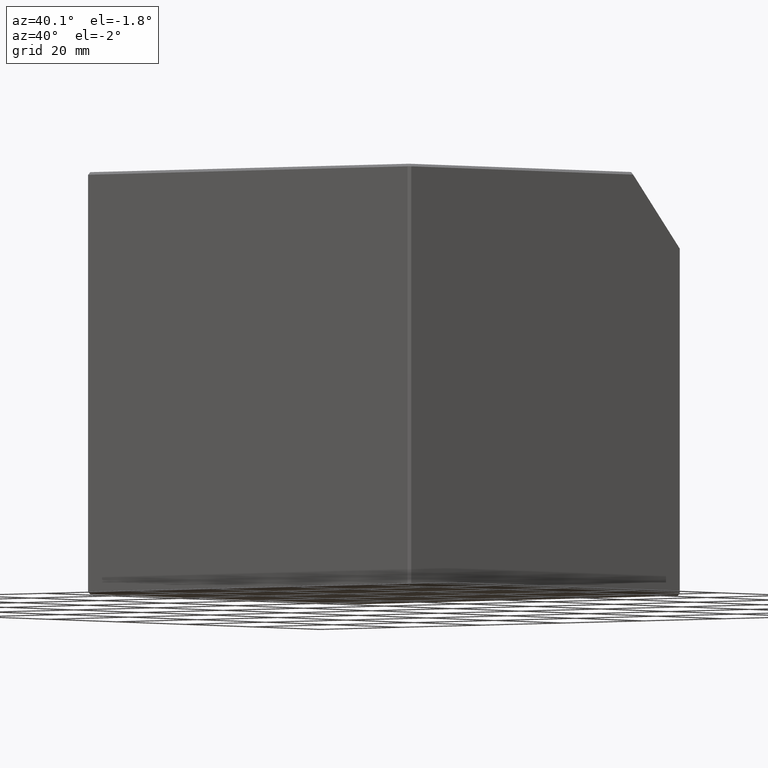
[diagram: clean part render]
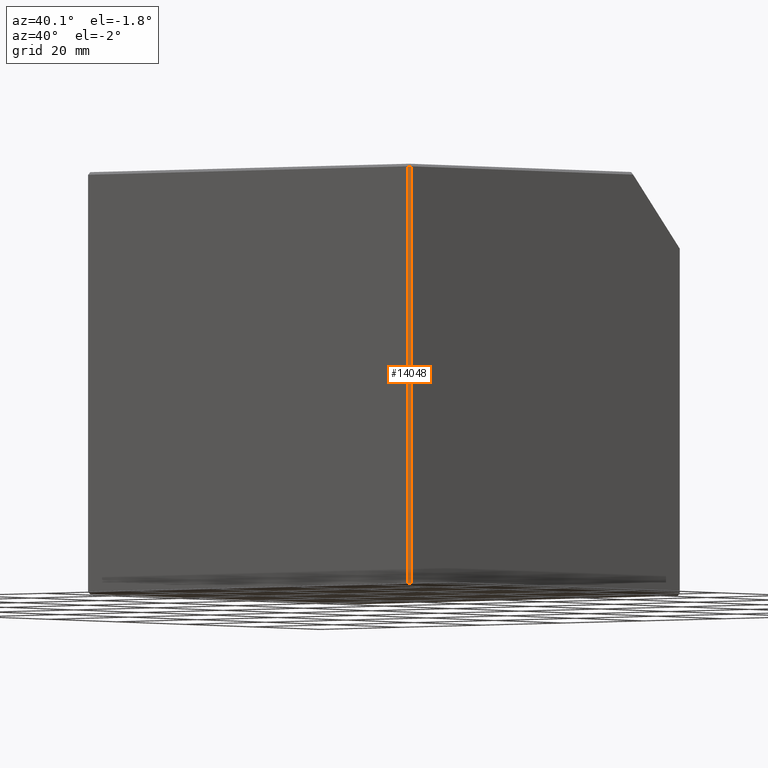
[diagram: same view with one face highlighted and labeled with its STEP entity id]
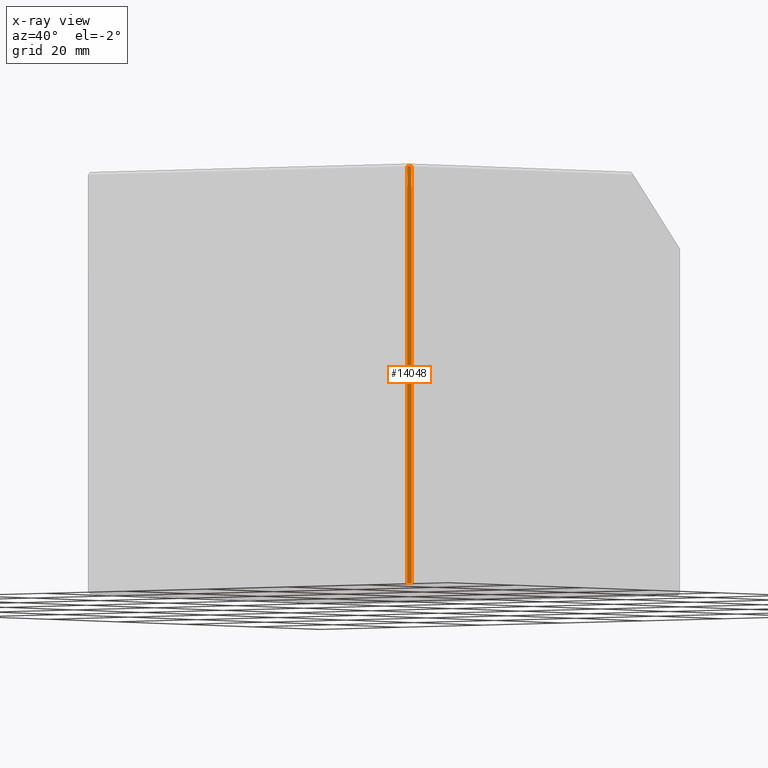
[diagram: x-ray of the same camera — body ghosted, the highlighted face saturated]
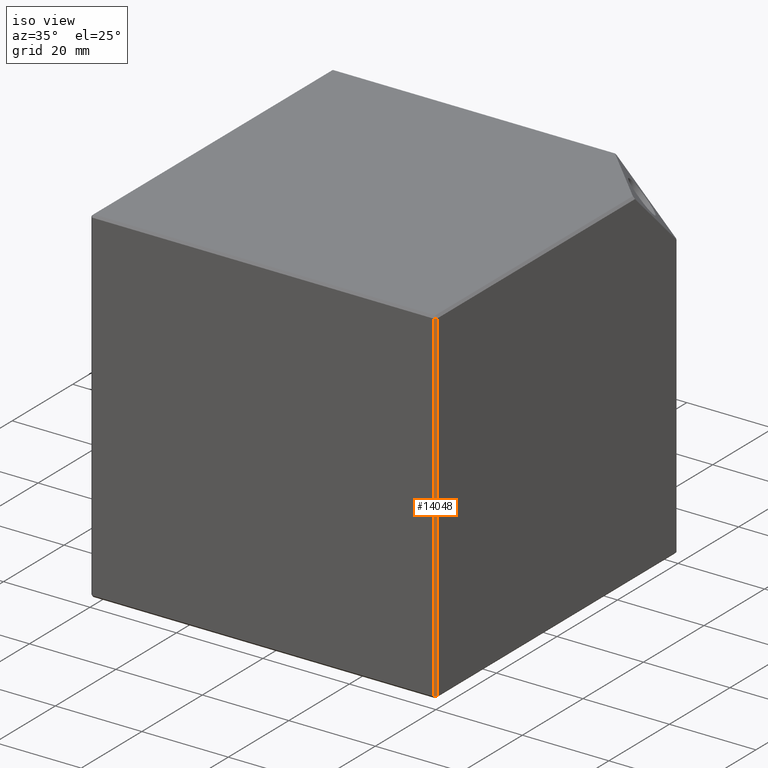
[diagram: same view with one face highlighted and labeled with its STEP entity id]
A machine part, auxiliary view. The second image highlights one B-rep face of the part: STEP entity #14048.
The next image is the same camera in x-ray: the body ghosted, the highlighted face saturated — about 0% of this face is hidden behind the body in this view.
A second angle (iso view) of the same face is appended — the face is thin or edge-on in the first view.
In plain terms, the highlighted planar face has unit normal (-0.7071, 0.7071, 0).
Its self-contained STEP definition (entity closure, byte-faithful):
#47 = EDGE_CURVE ( 'NONE', #7511, #12504, #6722, .T. ) ;
#1654 = VECTOR ( 'NONE', #11147, 1000.000000000000000 ) ;
#1667 = DIRECTION ( 'NONE',  ( 0.0000000000000000000, 0.0000000000000000000, 1.000000000000000000 ) ) ;
#1741 = CARTESIAN_POINT ( 'NONE',  ( 39.50000000000002800, -40.00000000000002100, 39.50000000000002800 ) ) ;
#1768 = VERTEX_POINT ( 'NONE', #14027 ) ;
#2338 = LINE ( 'NONE', #3374, #1654 ) ;
#2735 = CARTESIAN_POINT ( 'NONE',  ( 39.50000000000002800, -40.00000000000002100, 40.00000000000000000 ) ) ;
#2821 = EDGE_CURVE ( 'NONE', #12130, #1768, #9311, .T. ) ;
#2902 = DIRECTION ( 'NONE',  ( 0.7071067811865376900, 0.7071067811865574500, -2.775557561562892000E-017 ) ) ;
#3374 = CARTESIAN_POINT ( 'NONE',  ( 40.00000000000000700, -39.50000000000002800, 40.00000000000000000 ) ) ;
#4771 = EDGE_CURVE ( 'NONE', #12130, #7511, #11829, .T. ) ;
#5311 = CARTESIAN_POINT ( 'NONE',  ( 40.00000000000000700, -39.50000000000002800, 39.50000000000002800 ) ) ;
#6257 = VECTOR ( 'NONE', #1667, 1000.000000000000000 ) ;
#6537 = DIRECTION ( 'NONE',  ( 0.7071067811865376900, 0.7071067811865574500, 0.0000000000000000000 ) ) ;
#6722 = LINE ( 'NONE', #9570, #8122 ) ;
#7021 = FACE_OUTER_BOUND ( 'NONE', #7121, .T. ) ;
#7121 = EDGE_LOOP ( 'NONE', ( #12833, #12174, #10128, #12161 ) ) ;
#7386 = PLANE ( 'NONE',  #13200 ) ;
#7511 = VERTEX_POINT ( 'NONE', #1741 ) ;
#8122 = VECTOR ( 'NONE', #2902, 999.9999999999998900 ) ;
#9311 = LINE ( 'NONE', #14226, #11552 ) ;
#9570 = CARTESIAN_POINT ( 'NONE',  ( 39.75000000000001400, -39.75000000000002100, 39.50000000000002800 ) ) ;
#9668 = CARTESIAN_POINT ( 'NONE',  ( 40.00000000000000700, -39.50000000000002800, 40.00000000000000000 ) ) ;
#10128 = ORIENTED_EDGE ( 'NONE', *, *, #47, .F. ) ;
#10641 = DIRECTION ( 'NONE',  ( -0.7071067811865574500, 0.7071067811865376900, 0.0000000000000000000 ) ) ;
#11147 = DIRECTION ( 'NONE',  ( 0.0000000000000000000, 0.0000000000000000000, -1.000000000000000000 ) ) ;
#11552 = VECTOR ( 'NONE', #6537, 1000.000000000000000 ) ;
#11829 = LINE ( 'NONE', #2735, #6257 ) ;
#12130 = VERTEX_POINT ( 'NONE', #13241 ) ;
#12161 = ORIENTED_EDGE ( 'NONE', *, *, #4771, .F. ) ;
#12174 = ORIENTED_EDGE ( 'NONE', *, *, #12860, .F. ) ;
#12504 = VERTEX_POINT ( 'NONE', #5311 ) ;
#12833 = ORIENTED_EDGE ( 'NONE', *, *, #2821, .T. ) ;
#12860 = EDGE_CURVE ( 'NONE', #12504, #1768, #2338, .T. ) ;
#13200 = AXIS2_PLACEMENT_3D ( 'NONE', #9668, #10641, #14179 ) ;
#13241 = CARTESIAN_POINT ( 'NONE',  ( 39.50000000000002800, -40.00000000000002100, -39.50000000000001400 ) ) ;
#14027 = CARTESIAN_POINT ( 'NONE',  ( 40.00000000000000700, -39.50000000000002800, -39.50000000000001400 ) ) ;
#14048 = ADVANCED_FACE ( 'NONE', ( #7021 ), #7386, .F. ) ;
#14179 = DIRECTION ( 'NONE',  ( 0.0000000000000000000, 0.0000000000000000000, -1.000000000000000000 ) ) ;
#14226 = CARTESIAN_POINT ( 'NONE',  ( 40.00000000000000700, -39.50000000000002800, -39.50000000000001400 ) ) ;